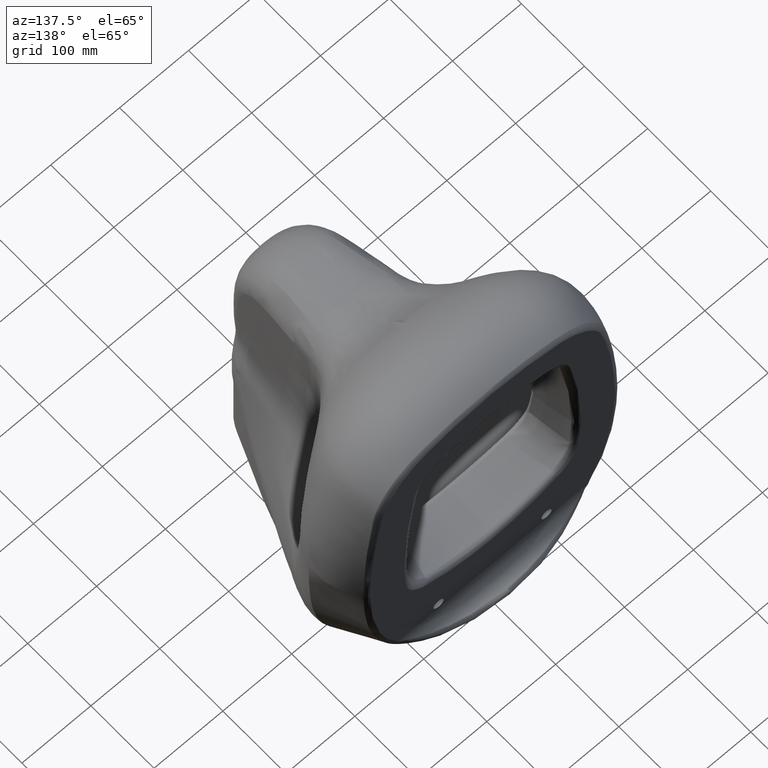
[diagram: clean part render]
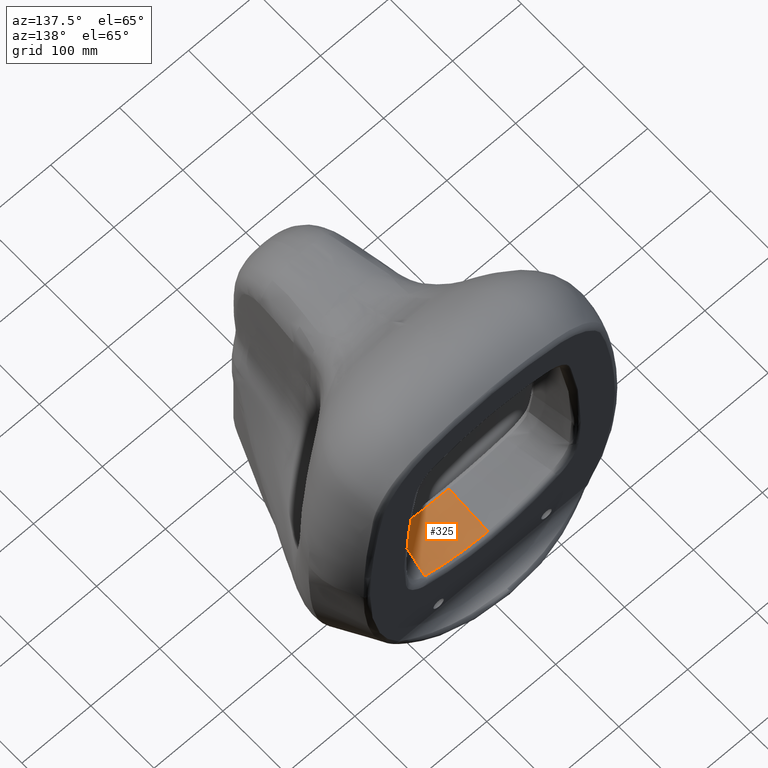
[diagram: same view with one face highlighted and labeled with its STEP entity id]
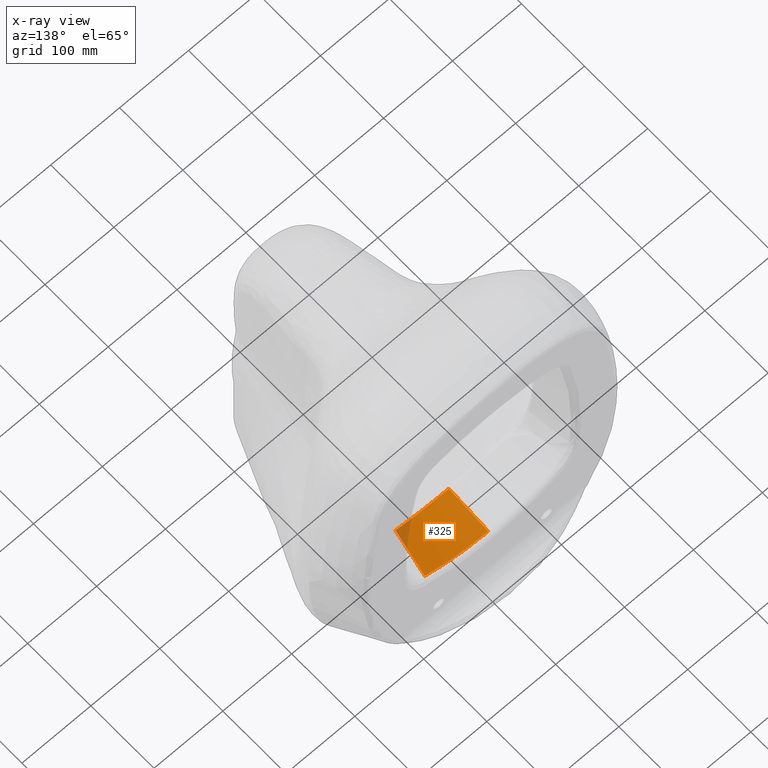
[diagram: x-ray of the same camera — body ghosted, the highlighted face saturated]
A machine part, auxiliary view. The second image highlights one B-rep face of the part: STEP entity #325.
The next image is the same camera in x-ray: the body ghosted, the highlighted face saturated — about 5% of this face is hidden behind the body in this view.
In plain terms, the highlighted conical surface has half-angle 8 deg.
Its self-contained STEP definition (entity closure, byte-faithful):
#45=CONICAL_SURFACE('',#3131,220.358442951823,8.);
#66=CIRCLE('',#3130,219.389382491111);
#325=ADVANCED_FACE('',(#543),#45,.F.);
#543=FACE_OUTER_BOUND('',#696,.T.);
#696=EDGE_LOOP('',(#1398,#1399,#1400,#1401));
#1398=ORIENTED_EDGE('',*,*,#2271,.F.);
#1399=ORIENTED_EDGE('',*,*,#2513,.F.);
#1400=ORIENTED_EDGE('',*,*,#2521,.T.);
#1401=ORIENTED_EDGE('',*,*,#2522,.F.);
#1874=VERTEX_POINT('',#10008);
#1883=VERTEX_POINT('',#10668);
#2055=VERTEX_POINT('',#41500);
#2060=VERTEX_POINT('',#42086);
#2271=EDGE_CURVE('',#1874,#1883,#2767,.T.);
#2513=EDGE_CURVE('',#2055,#1874,#2985,.T.);
#2521=EDGE_CURVE('',#2055,#2060,#2989,.T.);
#2522=EDGE_CURVE('',#1883,#2060,#66,.T.);
#2767=B_SPLINE_CURVE_WITH_KNOTS('',3,(#10664,#10665,#10666,#10667),
 .UNSPECIFIED.,.F.,.F.,(4,4),(0.,1.),.UNSPECIFIED.);
#2985=B_SPLINE_CURVE_WITH_KNOTS('',3,(#41501,#41502,#41503,#41504,#41505,
#41506,#41507,#41508),.UNSPECIFIED.,.F.,.F.,(4,2,2,4),(0.,0.5,0.75,1.),
 .UNSPECIFIED.);
#2989=B_SPLINE_CURVE_WITH_KNOTS('',3,(#42082,#42083,#42084,#42085),
 .UNSPECIFIED.,.F.,.F.,(4,4),(0.,1.),.UNSPECIFIED.);
#3130=AXIS2_PLACEMENT_3D('',#42087,#3221,#3222);
#3131=AXIS2_PLACEMENT_3D('',#42088,#3223,#3224);
#3221=DIRECTION('',(0.,-1.,0.));
#3222=DIRECTION('',(0.,0.,1.));
#3223=DIRECTION('',(0.,1.,0.));
#3224=DIRECTION('',(0.,0.,-1.));
#10008=CARTESIAN_POINT('',(0.,-69.2938836114034,164.851775034088));
#10664=CARTESIAN_POINT('',(0.,-69.2938836114034,164.851775034088));
#10665=CARTESIAN_POINT('',(0.,-48.4943302280389,161.92858844015));
#10666=CARTESIAN_POINT('',(0.,-27.6947768446744,159.005401846213));
#10667=CARTESIAN_POINT('',(0.,-6.89522346130989,156.082215252276));
#10668=CARTESIAN_POINT('',(-4.98748587858173E-8,-6.89522346130988,156.082215252276));
#41500=CARTESIAN_POINT('',(80.2953031812563,-66.3887724071794,180.316345839179));
#41501=CARTESIAN_POINT('',(80.2953031812563,-66.3887724071785,180.316345839179));
#41502=CARTESIAN_POINT('',(67.4835703939553,-67.2480050711711,175.17564281954));
#41503=CARTESIAN_POINT('',(54.3688453714369,-67.9879380346205,171.342891337197));
#41504=CARTESIAN_POINT('',(34.2585691724959,-68.7551361106216,167.46779292312));
#41505=CARTESIAN_POINT('',(27.4814137472424,-68.9543683901446,166.490761496797));
#41506=CARTESIAN_POINT('',(13.7756758123561,-69.2242392505486,165.180223275045));
#41507=CARTESIAN_POINT('',(6.83435240631113,-69.294013999227,164.851784251034));
#41508=CARTESIAN_POINT('',(3.77276374281915E-14,-69.2938836114075,164.851775034089));
#42082=CARTESIAN_POINT('',(80.2953031812566,-66.3887724071794,180.316345839179));
#42083=CARTESIAN_POINT('',(84.1259231990095,-47.0864770361669,178.959021147595));
#42084=CARTESIAN_POINT('',(88.0303059630212,-27.2552940542104,177.622050841648));
#42085=CARTESIAN_POINT('',(92.0092760710568,-6.89522346130997,176.308232844428));
#42086=CARTESIAN_POINT('',(92.0092760710566,-6.89522346130988,176.308232844429));
#42087=CARTESIAN_POINT('',(0.000280684589390377,-6.89522346130988,375.471597743207));
#42088=CARTESIAN_POINT('',(0.000280684589390377,0.,375.471597743207));